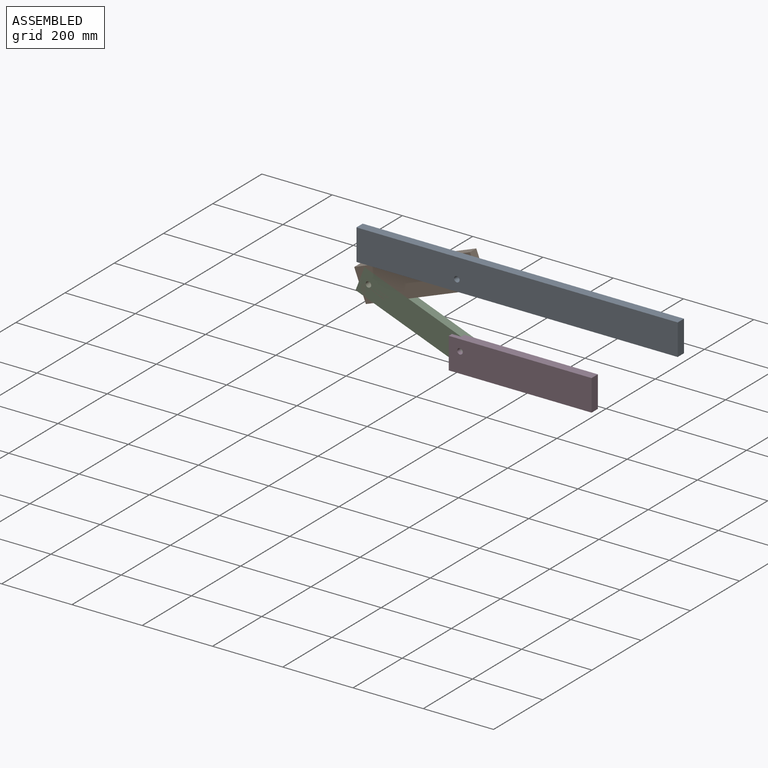
[diagram: assembled view]
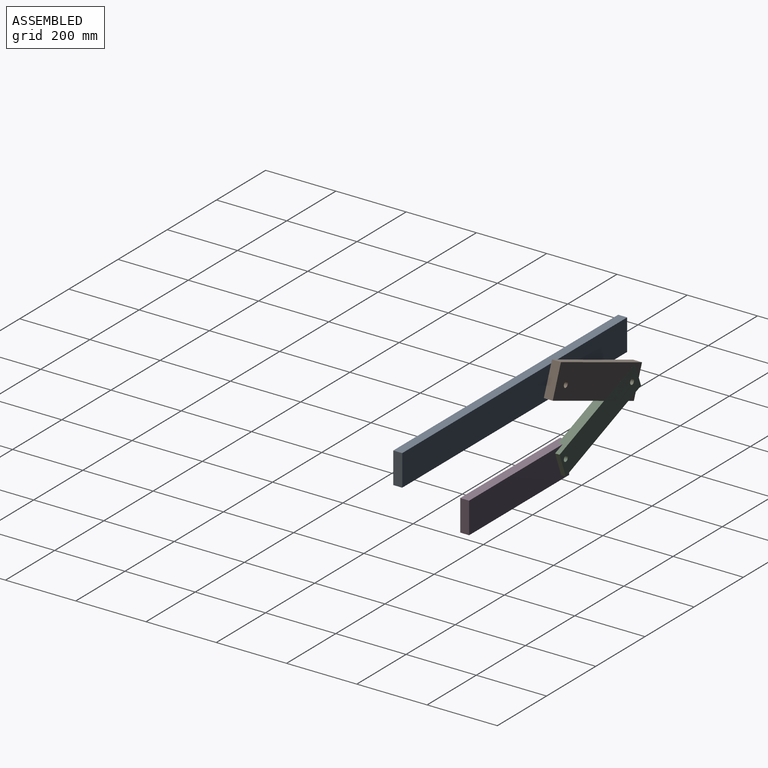
[diagram: assembled view, second angle]
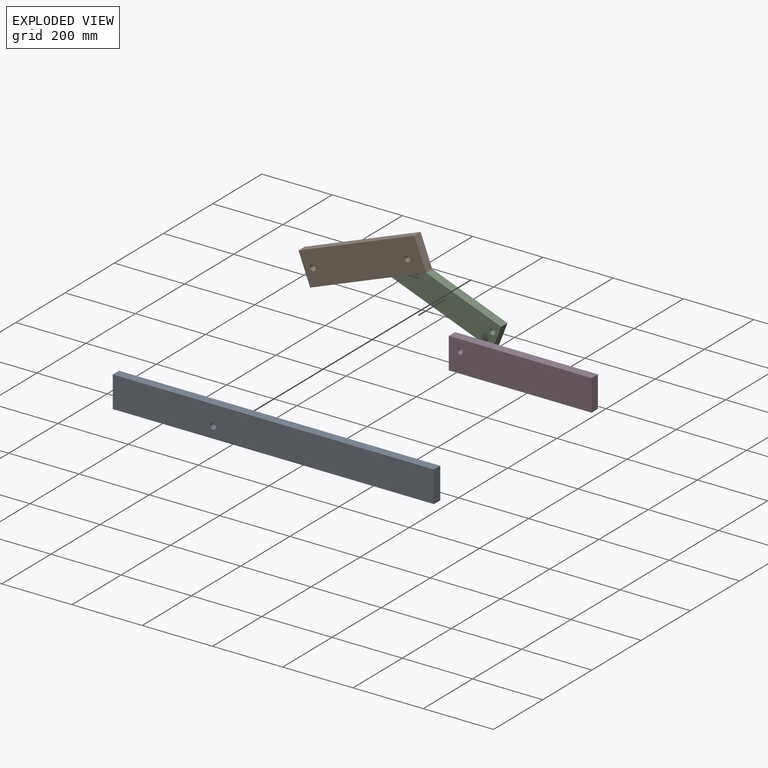
[diagram: exploded view]
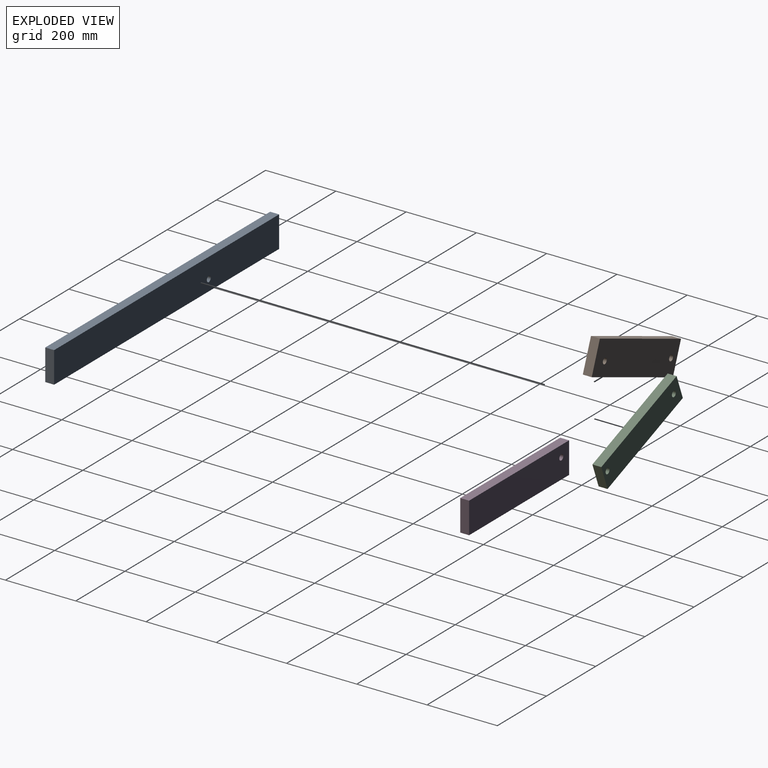
[diagram: exploded view, second angle]
ASSEMBLY  parts=4 mates=3
PART A: 7 faces, bbox 914.4x25.4x88.9 mm
  f0: plane 914.4x25.4mm, normal (0,0,1), area 23225.8mm2, adj f1,f3,f4,f5
  f1: plane 88.9x25.4mm, normal (-1,0,0), area 2258.1mm2, adj f0,f2,f4,f5
  f2: plane 914.4x25.4mm, normal (0,0,-1), area 23225.8mm2, adj f1,f3,f4,f5
  f3: plane 88.9x25.4mm, normal (1,0,0), area 2258.1mm2, adj f0,f2,f4,f5
  f4: plane 914.4x88.9mm, normal (0,-1,0), area 81092.2mm2, adj f0,f1,f2,f3,f6
  f5: plane 914.4x88.9mm, normal (0,1,0), area 81092.2mm2, adj f0,f1,f2,f3,f6
  f6: cylinder r=7.94mm len=25.4mm, axis (0,-1,0), area 1266.8mm2, adj f4,f5
PART B: 8 faces, bbox 92.7x25.4x353.1 mm
  f0: plane 92.73x25.4mm, normal (0,0,1), area 2355.3mm2, adj f1,f4,f5,f6
  f1: plane 353.08x25.4mm, normal (-1,0,0), area 8968.2mm2, adj f0,f2,f5,f6
  f2: plane 92.73x25.4mm, normal (0,0,-1), area 2355.3mm2, adj f1,f4,f5,f6
  f3: cylinder r=7.94mm len=25.4mm, axis (0,1,0), area 1266.8mm2, adj f5,f6
  f4: plane 353.08x25.4mm, normal (1,0,0), area 8968.2mm2, adj f0,f2,f5,f6
  f5: plane 353.08x92.73mm, normal (0,-1,0), area 32344.3mm2, adj f0,f1,f2,f3,f4,f7
  f6: plane 353.08x92.73mm, normal (0,1,0), area 32344.3mm2, adj f0,f1,f2,f3,f4,f7
  f7: cylinder r=7.94mm len=25.4mm, axis (0,-1,0), area 1266.8mm2, adj f5,f6
PART C: 8 faces, bbox 70.6x25.4x327.8 mm
  f0: plane 70.6x25.4mm, normal (0,0,1), area 1793.1mm2, adj f1,f3,f4,f5
  f1: plane 327.76x25.4mm, normal (-1,0,0), area 8325.2mm2, adj f0,f2,f4,f5
  f2: plane 70.6x25.4mm, normal (0,0,-1), area 1793.1mm2, adj f1,f3,f4,f5
  f3: plane 327.76x25.4mm, normal (1,0,0), area 8325.2mm2, adj f0,f2,f4,f5
  f4: plane 327.76x70.6mm, normal (0,-1,0), area 22742.8mm2, adj f0,f1,f2,f3,f6,f7
  f5: plane 327.76x70.6mm, normal (0,1,0), area 22742.8mm2, adj f0,f1,f2,f3,f6,f7
  f6: cylinder r=7.94mm len=25.4mm, axis (0,-1,0), area 1266.8mm2, adj f4,f5
  f7: cylinder r=7.94mm len=25.4mm, axis (0,-1,0), area 1266.8mm2, adj f4,f5
PART D: 7 faces, bbox 406.4x25.4x88.9 mm
  f0: plane 88.9x25.4mm, normal (-1,0,0), area 2258.1mm2, adj f1,f3,f4,f5
  f1: plane 406.4x25.4mm, normal (0,0,-1), area 10322.6mm2, adj f0,f2,f4,f5
  f2: plane 88.9x25.4mm, normal (1,0,0), area 2258.1mm2, adj f1,f3,f4,f5
  f3: plane 406.4x25.4mm, normal (0,0,1), area 10322.6mm2, adj f0,f2,f4,f5
  f4: plane 406.4x88.9mm, normal (0,-1,0), area 35931mm2, adj f0,f1,f2,f3,f6
  f5: plane 406.4x88.9mm, normal (0,1,0), area 35931mm2, adj f0,f1,f2,f3,f6
  f6: cylinder r=7.94mm len=25.4mm, axis (0,-1,0), area 1266.8mm2, adj f4,f5
PLACE A t=(0,-50.8,-381)mm
PLACE B rot(axis=(0,1,0),69deg) t=(-697.18,0,-137.33)mm
PLACE C rot(axis=(0,-1,0),69deg) t=(-56.75,0,196.81)mm
PLACE D t=(0,-12.7,0)mm fixed
MATE revolute B.f7 <-> C.f7  axis (0,-1,0) through (-440.96,-38.1,152.4)mm
MATE revolute B.f3 <-> A.f6  axis (0,1,0) through (-171.45,-50.8,247.65)mm
MATE revolute D.f6 <-> C.f6  axis (0,-1,0) through (-171.45,-50.8,57.15)mm
